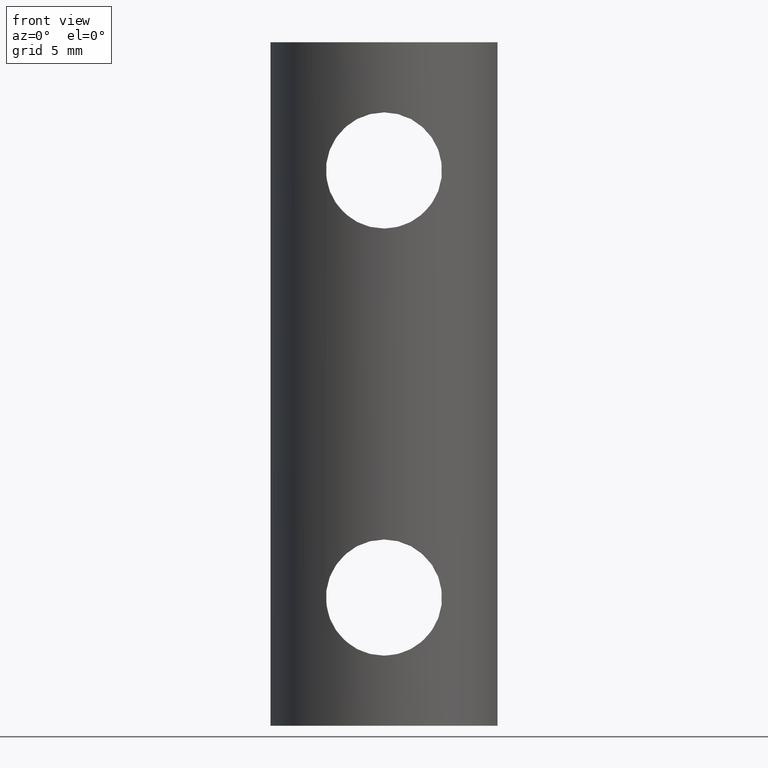
[diagram: clean part render]
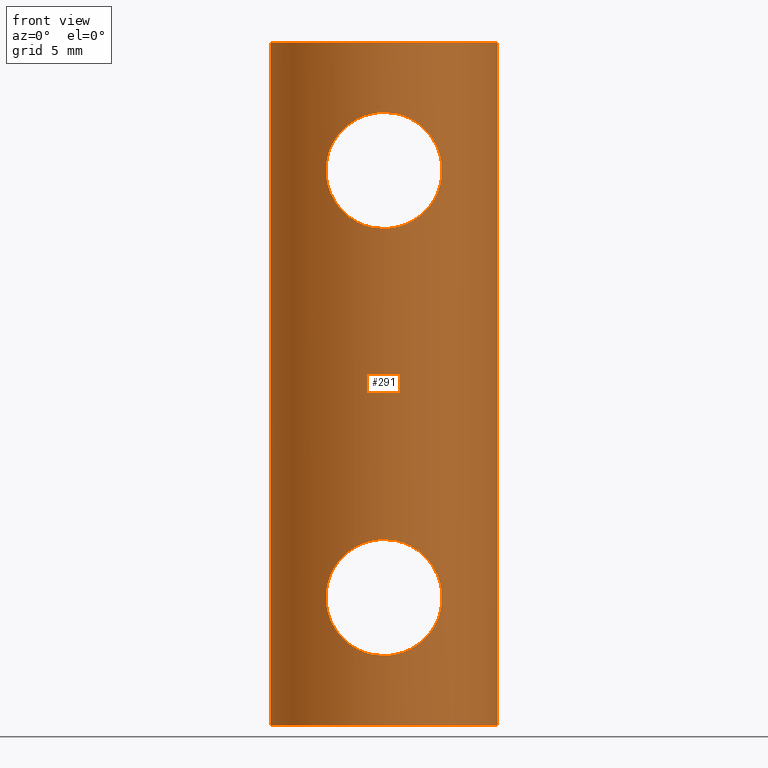
[diagram: same view with one face highlighted and labeled with its STEP entity id]
A machine part, front view. The second image highlights one B-rep face of the part: STEP entity #291.
In plain terms, the highlighted cylindrical surface (partial cylindrical patch) has radius 6.6517 mm, axis along (0, 0, -1).
Its self-contained STEP definition (entity closure, byte-faithful):
#26=LINE('',#511,#48);
#27=LINE('',#517,#49);
#48=VECTOR('',#355,40.);
#49=VECTOR('',#362,40.);
#71=FACE_BOUND('',#113,.T.);
#72=FACE_BOUND('',#114,.T.);
#79=CIRCLE('',#314,6.65173076923077);
#80=CIRCLE('',#315,6.65173076923077);
#94=FACE_OUTER_BOUND('',#112,.T.);
#112=EDGE_LOOP('',(#207,#208,#209,#210));
#113=EDGE_LOOP('',(#211));
#114=EDGE_LOOP('',(#212));
#129=B_SPLINE_CURVE_WITH_KNOTS('',3,(#429,#430,#431,#432,#433,#434,#435,
#436,#437,#438,#439,#440,#441,#442,#443,#444,#445,#446,#447,#448,#449,#450,
#451,#452,#453,#454,#455,#456,#457,#458,#459,#460,#461,#462),
 .UNSPECIFIED.,.T.,.F.,(4,2,2,2,2,2,2,2,2,2,2,2,2,2,2,2,4),(0.,0.131027554840982,
0.262055109681964,0.392687474751269,0.523319839820575,0.65395220488988,
0.784584569959185,0.915612124800167,1.04663967964115,1.17766723448213,1.30869478932311,
1.43932715439242,1.56995951946172,1.70059188453103,1.83122424960033,1.96225180444132,
2.0932793592823),.UNSPECIFIED.);
#130=B_SPLINE_CURVE_WITH_KNOTS('',3,(#467,#468,#469,#470,#471,#472,#473,
#474,#475,#476,#477,#478,#479,#480,#481,#482,#483,#484,#485,#486,#487,#488,
#489,#490,#491,#492,#493,#494,#495,#496,#497,#498,#499,#500),
 .UNSPECIFIED.,.T.,.F.,(4,2,2,2,2,2,2,2,2,2,2,2,2,2,2,2,4),(0.,0.131027554840982,
0.262055109681963,0.392687474751269,0.523319839820574,0.653952204889879,
0.784584569959185,0.915612124800167,1.04663967964115,1.17766723448213,1.30869478932311,
1.43932715439242,1.56995951946172,1.70059188453103,1.83122424960033,1.96225180444131,
2.0932793592823),.UNSPECIFIED.);
#131=VERTEX_POINT('',#428);
#133=VERTEX_POINT('',#466);
#136=VERTEX_POINT('',#505);
#138=VERTEX_POINT('',#509);
#139=VERTEX_POINT('',#513);
#140=VERTEX_POINT('',#515);
#159=EDGE_CURVE('',#131,#131,#129,.T.);
#161=EDGE_CURVE('',#133,#133,#130,.T.);
#166=EDGE_CURVE('',#136,#138,#26,.T.);
#167=EDGE_CURVE('',#136,#139,#79,.T.);
#168=EDGE_CURVE('',#138,#140,#80,.T.);
#169=EDGE_CURVE('',#140,#139,#27,.T.);
#207=ORIENTED_EDGE('',*,*,#167,.F.);
#208=ORIENTED_EDGE('',*,*,#166,.T.);
#209=ORIENTED_EDGE('',*,*,#168,.T.);
#210=ORIENTED_EDGE('',*,*,#169,.T.);
#211=ORIENTED_EDGE('',*,*,#159,.T.);
#212=ORIENTED_EDGE('',*,*,#161,.T.);
#282=CYLINDRICAL_SURFACE('',#313,6.65173076923077);
#291=ADVANCED_FACE('',(#94,#71,#72),#282,.T.);
#313=AXIS2_PLACEMENT_3D('',#512,#356,#357);
#314=AXIS2_PLACEMENT_3D('',#514,#358,#359);
#315=AXIS2_PLACEMENT_3D('',#516,#360,#361);
#355=DIRECTION('',(0.,0.,-1.));
#356=DIRECTION('center_axis',(0.,0.,-1.));
#357=DIRECTION('ref_axis',(-1.,0.,0.));
#358=DIRECTION('center_axis',(0.,0.,1.));
#359=DIRECTION('ref_axis',(1.,0.,0.));
#360=DIRECTION('center_axis',(0.,0.,1.));
#361=DIRECTION('ref_axis',(1.,0.,0.));
#362=DIRECTION('',(0.,0.,1.));
#428=CARTESIAN_POINT('',(4.16379924307195E-16,-6.5,29.1));
#429=CARTESIAN_POINT('Ctrl Pts',(3.4,-5.56539457715891,32.5));
#430=CARTESIAN_POINT('Ctrl Pts',(3.4,-5.56539457715891,32.0632414838634));
#431=CARTESIAN_POINT('Ctrl Pts',(3.31102816126517,-5.62077284062291,31.6046937341527));
#432=CARTESIAN_POINT('Ctrl Pts',(2.96191687936118,-5.8074427995085,30.7703947402309));
#433=CARTESIAN_POINT('Ctrl Pts',(2.70201157560893,-5.93486926136199,30.3936854635404));
#434=CARTESIAN_POINT('Ctrl Pts',(2.10721287184094,-6.16543677489532,29.7988867597724));
#435=CARTESIAN_POINT('Ctrl Pts',(1.73020592601123,-6.28515870979323,29.5383254414694));
#436=CARTESIAN_POINT('Ctrl Pts',(0.894584413487754,-6.4533337686477,29.1886788089965));
#437=CARTESIAN_POINT('Ctrl Pts',(0.435441216897685,-6.5,29.1));
#438=CARTESIAN_POINT('Ctrl Pts',(-0.435441216897684,-6.5,29.1));
#439=CARTESIAN_POINT('Ctrl Pts',(-0.894584413487754,-6.4533337686477,29.1886788089965));
#440=CARTESIAN_POINT('Ctrl Pts',(-1.73020592601123,-6.28515870979323,29.5383254414694));
#441=CARTESIAN_POINT('Ctrl Pts',(-2.10721287184094,-6.16543677489532,29.7988867597724));
#442=CARTESIAN_POINT('Ctrl Pts',(-2.70201157560893,-5.93486926136199,30.3936854635404));
#443=CARTESIAN_POINT('Ctrl Pts',(-2.96191687936118,-5.8074427995085,30.7703947402309));
#444=CARTESIAN_POINT('Ctrl Pts',(-3.31102816126517,-5.62077284062291,31.6046937341527));
#445=CARTESIAN_POINT('Ctrl Pts',(-3.4,-5.56539457715891,32.0632414838634));
#446=CARTESIAN_POINT('Ctrl Pts',(-3.4,-5.56539457715891,32.9367585161366));
#447=CARTESIAN_POINT('Ctrl Pts',(-3.31102816126517,-5.62077284062291,33.3953062658473));
#448=CARTESIAN_POINT('Ctrl Pts',(-2.96191687936118,-5.8074427995085,34.2296052597691));
#449=CARTESIAN_POINT('Ctrl Pts',(-2.70201157560893,-5.93486926136199,34.6063145364596));
#450=CARTESIAN_POINT('Ctrl Pts',(-2.10721287184095,-6.16543677489532,35.2011132402276));
#451=CARTESIAN_POINT('Ctrl Pts',(-1.73020592601124,-6.28515870979322,35.4616745585306));
#452=CARTESIAN_POINT('Ctrl Pts',(-0.894584413487756,-6.4533337686477,35.8113211910035));
#453=CARTESIAN_POINT('Ctrl Pts',(-0.435441216897686,-6.5,35.9));
#454=CARTESIAN_POINT('Ctrl Pts',(0.435441216897683,-6.5,35.9));
#455=CARTESIAN_POINT('Ctrl Pts',(0.894584413487753,-6.4533337686477,35.8113211910035));
#456=CARTESIAN_POINT('Ctrl Pts',(1.73020592601123,-6.28515870979323,35.4616745585306));
#457=CARTESIAN_POINT('Ctrl Pts',(2.10721287184094,-6.16543677489532,35.2011132402276));
#458=CARTESIAN_POINT('Ctrl Pts',(2.70201157560893,-5.93486926136199,34.6063145364596));
#459=CARTESIAN_POINT('Ctrl Pts',(2.96191687936118,-5.8074427995085,34.2296052597691));
#460=CARTESIAN_POINT('Ctrl Pts',(3.31102816126517,-5.62077284062291,33.3953062658473));
#461=CARTESIAN_POINT('Ctrl Pts',(3.4,-5.56539457715891,32.9367585161366));
#462=CARTESIAN_POINT('Ctrl Pts',(3.4,-5.56539457715891,32.5));
#466=CARTESIAN_POINT('',(4.16379924307195E-16,-6.5,4.1));
#467=CARTESIAN_POINT('Ctrl Pts',(3.4,-5.56539457715891,7.5));
#468=CARTESIAN_POINT('Ctrl Pts',(3.4,-5.56539457715891,7.06324148386339));
#469=CARTESIAN_POINT('Ctrl Pts',(3.31102816126517,-5.62077284062291,6.60469373415269));
#470=CARTESIAN_POINT('Ctrl Pts',(2.96191687936118,-5.8074427995085,5.7703947402309));
#471=CARTESIAN_POINT('Ctrl Pts',(2.70201157560892,-5.93486926136199,5.39368546354041));
#472=CARTESIAN_POINT('Ctrl Pts',(2.10721287184094,-6.16543677489532,4.79888675977242));
#473=CARTESIAN_POINT('Ctrl Pts',(1.73020592601123,-6.28515870979322,4.53832544146937));
#474=CARTESIAN_POINT('Ctrl Pts',(0.894584413487753,-6.4533337686477,4.18867880899651));
#475=CARTESIAN_POINT('Ctrl Pts',(0.435441216897685,-6.5,4.1));
#476=CARTESIAN_POINT('Ctrl Pts',(-0.435441216897684,-6.5,4.1));
#477=CARTESIAN_POINT('Ctrl Pts',(-0.894584413487753,-6.4533337686477,4.18867880899651));
#478=CARTESIAN_POINT('Ctrl Pts',(-1.73020592601123,-6.28515870979323,4.53832544146937));
#479=CARTESIAN_POINT('Ctrl Pts',(-2.10721287184094,-6.16543677489532,4.79888675977242));
#480=CARTESIAN_POINT('Ctrl Pts',(-2.70201157560892,-5.93486926136199,5.39368546354041));
#481=CARTESIAN_POINT('Ctrl Pts',(-2.96191687936118,-5.8074427995085,5.7703947402309));
#482=CARTESIAN_POINT('Ctrl Pts',(-3.31102816126517,-5.62077284062291,6.60469373415269));
#483=CARTESIAN_POINT('Ctrl Pts',(-3.4,-5.56539457715892,7.0632414838634));
#484=CARTESIAN_POINT('Ctrl Pts',(-3.4,-5.56539457715892,7.93675851613661));
#485=CARTESIAN_POINT('Ctrl Pts',(-3.31102816126517,-5.62077284062291,8.39530626584731));
#486=CARTESIAN_POINT('Ctrl Pts',(-2.96191687936118,-5.8074427995085,9.2296052597691));
#487=CARTESIAN_POINT('Ctrl Pts',(-2.70201157560893,-5.93486926136199,9.6063145364596));
#488=CARTESIAN_POINT('Ctrl Pts',(-2.10721287184094,-6.16543677489532,10.2011132402276));
#489=CARTESIAN_POINT('Ctrl Pts',(-1.73020592601123,-6.28515870979323,10.4616745585306));
#490=CARTESIAN_POINT('Ctrl Pts',(-0.894584413487753,-6.4533337686477,10.8113211910035));
#491=CARTESIAN_POINT('Ctrl Pts',(-0.435441216897685,-6.5,10.9));
#492=CARTESIAN_POINT('Ctrl Pts',(0.435441216897684,-6.5,10.9));
#493=CARTESIAN_POINT('Ctrl Pts',(0.89458441348775,-6.4533337686477,10.8113211910035));
#494=CARTESIAN_POINT('Ctrl Pts',(1.73020592601123,-6.28515870979323,10.4616745585306));
#495=CARTESIAN_POINT('Ctrl Pts',(2.10721287184094,-6.16543677489532,10.2011132402276));
#496=CARTESIAN_POINT('Ctrl Pts',(2.70201157560892,-5.93486926136199,9.6063145364596));
#497=CARTESIAN_POINT('Ctrl Pts',(2.96191687936118,-5.8074427995085,9.2296052597691));
#498=CARTESIAN_POINT('Ctrl Pts',(3.31102816126517,-5.62077284062291,8.39530626584731));
#499=CARTESIAN_POINT('Ctrl Pts',(3.4,-5.56539457715891,7.93675851613661));
#500=CARTESIAN_POINT('Ctrl Pts',(3.4,-5.56539457715891,7.5));
#505=CARTESIAN_POINT('',(-6.6418384989401,-0.210903454648425,40.));
#509=CARTESIAN_POINT('',(-6.6418384989401,-0.210903454648425,0.));
#511=CARTESIAN_POINT('',(-6.6418384989401,-0.210903454648425,40.));
#512=CARTESIAN_POINT('Origin',(0.,0.151730769230771,40.));
#513=CARTESIAN_POINT('',(6.6418384989401,-0.210903454648425,40.));
#514=CARTESIAN_POINT('Origin',(0.,0.151730769230771,40.));
#515=CARTESIAN_POINT('',(6.6418384989401,-0.210903454648425,0.));
#516=CARTESIAN_POINT('Origin',(0.,0.151730769230771,0.));
#517=CARTESIAN_POINT('',(6.6418384989401,-0.210903454648425,40.));